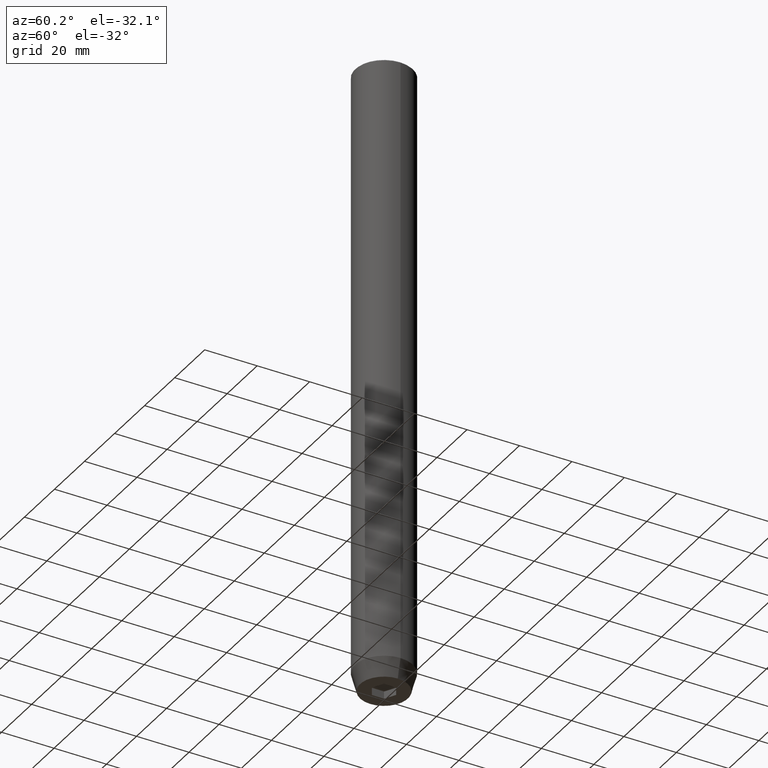
[diagram: clean part render]
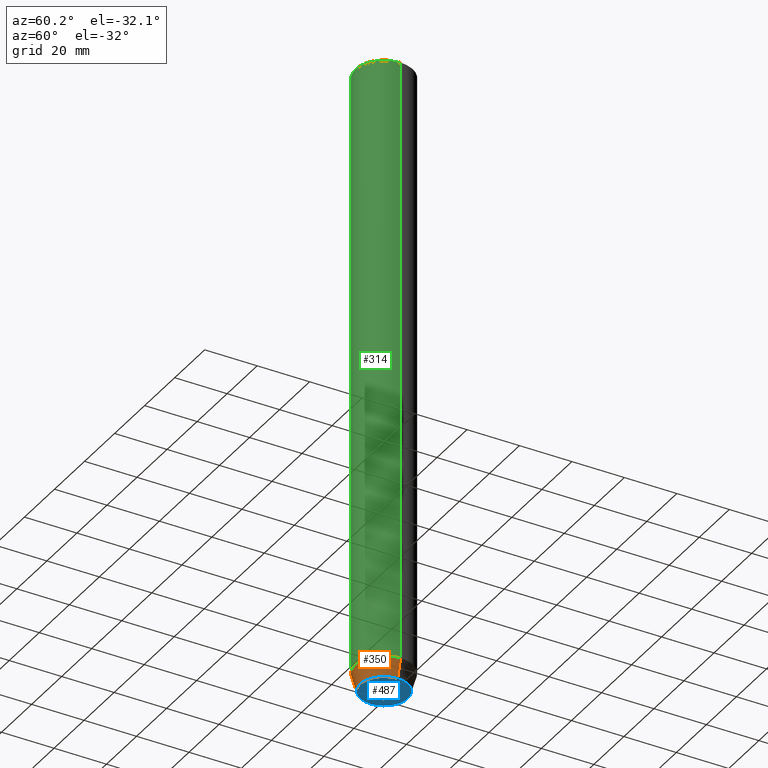
[diagram: same view with three faces highlighted in distinct colors, each labeled with its STEP entity id]
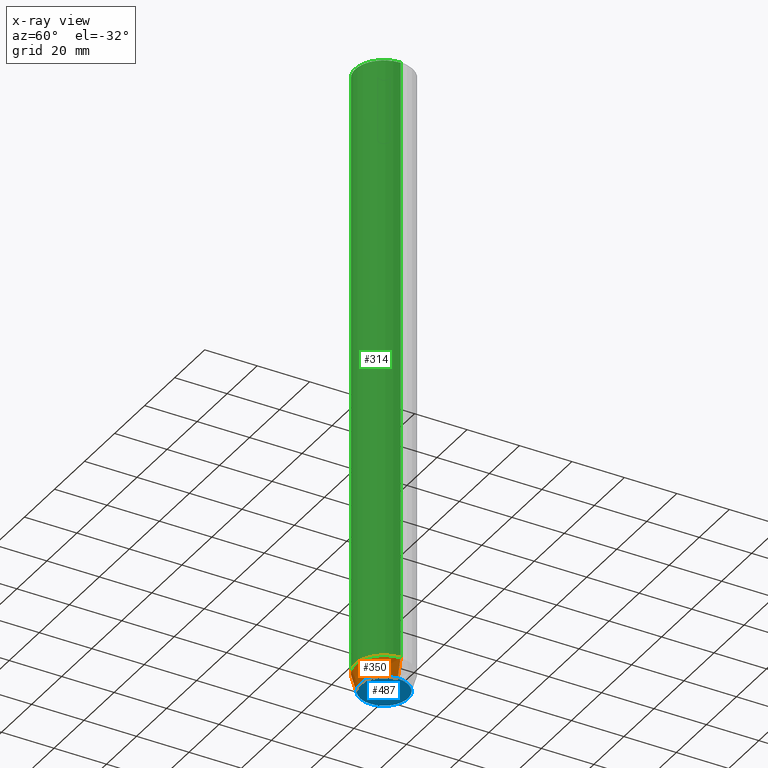
[diagram: x-ray of the same camera — body ghosted, the three highlighted faces saturated]
A machine part, auxiliary view with three faces highlighted in distinct colors.
The next image is the same camera in x-ray (body ghosted, the three faces saturated) — at least one of them is partly hidden behind the body in this view.
Their STEP definitions:

[orange] entity #350 — the highlighted conical surface has half-angle 15 deg.
#2 = CARTESIAN_POINT ( 'NONE',  ( 0.000000000000000000, 0.000000000000000000, -240.0000000000000000 ) ) ;
#8 = EDGE_CURVE ( 'NONE', #197, #468, #38, .T. ) ;
#11 = AXIS2_PLACEMENT_3D ( 'NONE', #2, #362, #126 ) ;
#30 = DIRECTION ( 'NONE',  ( 1.000000000000000000, 0.000000000000000000, 0.000000000000000000 ) ) ;
#38 = CIRCLE ( 'NONE', #11, 9.124355652982133691 ) ;
#45 = LINE ( 'NONE', #460, #473 ) ;
#68 = CARTESIAN_POINT ( 'NONE',  ( 0.000000000000000000, 0.000000000000000000, -232.9999999999999716 ) ) ;
#79 = AXIS2_PLACEMENT_3D ( 'NONE', #68, #351, #30 ) ;
#112 = DIRECTION ( 'NONE',  ( -0.000000000000000000, -0.000000000000000000, 1.000000000000000000 ) ) ;
#126 = DIRECTION ( 'NONE',  ( 1.000000000000000000, 0.000000000000000000, 0.000000000000000000 ) ) ;
#132 = ORIENTED_EDGE ( 'NONE', *, *, #357, .F. ) ;
#134 = DIRECTION ( 'NONE',  ( 0.2588190451025213501, 0.000000000000000000, 0.9659258262890680902 ) ) ;
#142 = LINE ( 'NONE', #147, #305 ) ;
#147 = CARTESIAN_POINT ( 'NONE',  ( -11.00000000000000000, 1.347111479062088405E-15, -232.9999999999999716 ) ) ;
#160 = CONICAL_SURFACE ( 'NONE', #467, 11.00000000000000000, 0.2617993877991500740 ) ;
#162 = EDGE_CURVE ( 'NONE', #197, #248, #142, .T. ) ;
#197 = VERTEX_POINT ( 'NONE', #561 ) ;
#227 = EDGE_LOOP ( 'NONE', ( #525, #569, #290, #132 ) ) ;
#248 = VERTEX_POINT ( 'NONE', #401 ) ;
#276 = CARTESIAN_POINT ( 'NONE',  ( 9.124355652982133691, 0.000000000000000000, -240.0000000000000000 ) ) ;
#290 = ORIENTED_EDGE ( 'NONE', *, *, #451, .T. ) ;
#295 = CIRCLE ( 'NONE', #79, 11.00000000000000000 ) ;
#302 = DIRECTION ( 'NONE',  ( 1.000000000000000000, 0.000000000000000000, 0.000000000000000000 ) ) ;
#305 = VECTOR ( 'NONE', #378, 1000.000000000000000 ) ;
#348 = CARTESIAN_POINT ( 'NONE',  ( 0.000000000000000000, 0.000000000000000000, -232.9999999999999716 ) ) ;
#350 = ADVANCED_FACE ( 'NONE', ( #395 ), #160, .T. ) ;
#351 = DIRECTION ( 'NONE',  ( -0.000000000000000000, -0.000000000000000000, 1.000000000000000000 ) ) ;
#357 = EDGE_CURVE ( 'NONE', #248, #571, #295, .T. ) ;
#362 = DIRECTION ( 'NONE',  ( -0.000000000000000000, -0.000000000000000000, 1.000000000000000000 ) ) ;
#378 = DIRECTION ( 'NONE',  ( -0.2588190451025213501, 3.169619151431772337E-17, 0.9659258262890680902 ) ) ;
#395 = FACE_OUTER_BOUND ( 'NONE', #227, .T. ) ;
#401 = CARTESIAN_POINT ( 'NONE',  ( -11.00000000000000000, 1.347111479062088405E-15, -232.9999999999999716 ) ) ;
#451 = EDGE_CURVE ( 'NONE', #468, #571, #45, .T. ) ;
#460 = CARTESIAN_POINT ( 'NONE',  ( 11.00000000000000000, 0.000000000000000000, -232.9999999999999716 ) ) ;
#467 = AXIS2_PLACEMENT_3D ( 'NONE', #348, #112, #302 ) ;
#468 = VERTEX_POINT ( 'NONE', #276 ) ;
#473 = VECTOR ( 'NONE', #134, 1000.000000000000000 ) ;
#525 = ORIENTED_EDGE ( 'NONE', *, *, #162, .F. ) ;
#542 = CARTESIAN_POINT ( 'NONE',  ( 11.00000000000000000, 0.000000000000000000, -232.9999999999999716 ) ) ;
#561 = CARTESIAN_POINT ( 'NONE',  ( -9.124355652982133691, 1.232261386766375507E-15, -240.0000000000000000 ) ) ;
#569 = ORIENTED_EDGE ( 'NONE', *, *, #8, .T. ) ;
#571 = VERTEX_POINT ( 'NONE', #542 ) ;

[blue] entity #487 — the highlighted planar face has unit normal (0, 0, -1).
#1 = FACE_OUTER_BOUND ( 'NONE', #280, .T. ) ;
#2 = CARTESIAN_POINT ( 'NONE',  ( 0.000000000000000000, 0.000000000000000000, -240.0000000000000000 ) ) ;
#4 = AXIS2_PLACEMENT_3D ( 'NONE', #414, #127, #131 ) ;
#8 = EDGE_CURVE ( 'NONE', #197, #468, #38, .T. ) ;
#11 = AXIS2_PLACEMENT_3D ( 'NONE', #2, #362, #126 ) ;
#14 = VERTEX_POINT ( 'NONE', #250 ) ;
#17 = LINE ( 'NONE', #479, #118 ) ;
#25 = ORIENTED_EDGE ( 'NONE', *, *, #461, .F. ) ;
#28 = VECTOR ( 'NONE', #572, 1000.000000000000000 ) ;
#38 = CIRCLE ( 'NONE', #11, 9.124355652982133691 ) ;
#63 = VERTEX_POINT ( 'NONE', #336 ) ;
#64 = LINE ( 'NONE', #437, #28 ) ;
#83 = CARTESIAN_POINT ( 'NONE',  ( -4.000000000000000000, 2.309401076758503368, -240.0000000000000000 ) ) ;
#92 = EDGE_CURVE ( 'NONE', #14, #430, #64, .T. ) ;
#94 = EDGE_CURVE ( 'NONE', #106, #63, #309, .T. ) ;
#101 = LINE ( 'NONE', #291, #279 ) ;
#102 = ORIENTED_EDGE ( 'NONE', *, *, #92, .F. ) ;
#105 = CARTESIAN_POINT ( 'NONE',  ( 4.336808689942017736E-16, -4.618802153517006737, -240.0000000000000000 ) ) ;
#106 = VERTEX_POINT ( 'NONE', #448 ) ;
#118 = VECTOR ( 'NONE', #193, 1000.000000000000000 ) ;
#124 = ORIENTED_EDGE ( 'NONE', *, *, #441, .F. ) ;
#126 = DIRECTION ( 'NONE',  ( 1.000000000000000000, 0.000000000000000000, 0.000000000000000000 ) ) ;
#127 = DIRECTION ( 'NONE',  ( 0.000000000000000000, 0.000000000000000000, -1.000000000000000000 ) ) ;
#131 = DIRECTION ( 'NONE',  ( -1.000000000000000000, 0.000000000000000000, -0.000000000000000000 ) ) ;
#137 = CIRCLE ( 'NONE', #322, 9.124355652982133691 ) ;
#145 = VECTOR ( 'NONE', #406, 999.9999999999998863 ) ;
#149 = EDGE_CURVE ( 'NONE', #535, #287, #101, .T. ) ;
#175 = PLANE ( 'NONE',  #4 ) ;
#182 = EDGE_CURVE ( 'NONE', #63, #535, #17, .T. ) ;
#193 = DIRECTION ( 'NONE',  ( 0.000000000000000000, -1.000000000000000000, 0.000000000000000000 ) ) ;
#197 = VERTEX_POINT ( 'NONE', #561 ) ;
#211 = CARTESIAN_POINT ( 'NONE',  ( 0.000000000000000000, 0.000000000000000000, -240.0000000000000000 ) ) ;
#249 = CARTESIAN_POINT ( 'NONE',  ( 4.000000000000000000, -2.309401076758502480, -240.0000000000000000 ) ) ;
#250 = CARTESIAN_POINT ( 'NONE',  ( -4.000000000000000000, -2.309401076758503368, -240.0000000000000000 ) ) ;
#269 = EDGE_LOOP ( 'NONE', ( #25, #102, #124, #486, #500, #475 ) ) ;
#276 = CARTESIAN_POINT ( 'NONE',  ( 9.124355652982133691, 0.000000000000000000, -240.0000000000000000 ) ) ;
#279 = VECTOR ( 'NONE', #289, 1000.000000000000114 ) ;
#280 = EDGE_LOOP ( 'NONE', ( #311, #585 ) ) ;
#281 = VECTOR ( 'NONE', #452, 1000.000000000000114 ) ;
#287 = VERTEX_POINT ( 'NONE', #105 ) ;
#289 = DIRECTION ( 'NONE',  ( -0.8660254037844384856, -0.5000000000000002220, 0.000000000000000000 ) ) ;
#291 = CARTESIAN_POINT ( 'NONE',  ( 2.000000000000000888, -3.464101615137754386, -240.0000000000000000 ) ) ;
#309 = LINE ( 'NONE', #346, #422 ) ;
#311 = ORIENTED_EDGE ( 'NONE', *, *, #318, .F. ) ;
#318 = EDGE_CURVE ( 'NONE', #468, #197, #137, .T. ) ;
#322 = AXIS2_PLACEMENT_3D ( 'NONE', #211, #392, #534 ) ;
#336 = CARTESIAN_POINT ( 'NONE',  ( 4.000000000000000000, 2.309401076758503368, -240.0000000000000000 ) ) ;
#346 = CARTESIAN_POINT ( 'NONE',  ( 2.000000000000000444, 3.464101615137754386, -240.0000000000000000 ) ) ;
#362 = DIRECTION ( 'NONE',  ( -0.000000000000000000, -0.000000000000000000, 1.000000000000000000 ) ) ;
#370 = FACE_BOUND ( 'NONE', #269, .T. ) ;
#392 = DIRECTION ( 'NONE',  ( -0.000000000000000000, -0.000000000000000000, 1.000000000000000000 ) ) ;
#406 = DIRECTION ( 'NONE',  ( 0.8660254037844387076, 0.5000000000000001110, 0.000000000000000000 ) ) ;
#411 = CARTESIAN_POINT ( 'NONE',  ( -2.000000000000000000, 3.464101615137754830, -240.0000000000000000 ) ) ;
#414 = CARTESIAN_POINT ( 'NONE',  ( 0.000000000000000000, 9.124355652982133691, -240.0000000000000000 ) ) ;
#422 = VECTOR ( 'NONE', #539, 1000.000000000000000 ) ;
#430 = VERTEX_POINT ( 'NONE', #83 ) ;
#437 = CARTESIAN_POINT ( 'NONE',  ( -4.000000000000000000, 0.000000000000000000, -240.0000000000000000 ) ) ;
#441 = EDGE_CURVE ( 'NONE', #287, #14, #549, .T. ) ;
#448 = CARTESIAN_POINT ( 'NONE',  ( 2.168404344971008868E-16, 4.618802153517006737, -240.0000000000000000 ) ) ;
#452 = DIRECTION ( 'NONE',  ( -0.8660254037844384856, 0.5000000000000002220, 0.000000000000000000 ) ) ;
#461 = EDGE_CURVE ( 'NONE', #430, #106, #463, .T. ) ;
#463 = LINE ( 'NONE', #411, #145 ) ;
#468 = VERTEX_POINT ( 'NONE', #276 ) ;
#475 = ORIENTED_EDGE ( 'NONE', *, *, #94, .F. ) ;
#479 = CARTESIAN_POINT ( 'NONE',  ( 4.000000000000000000, 0.000000000000000000, -240.0000000000000000 ) ) ;
#486 = ORIENTED_EDGE ( 'NONE', *, *, #149, .F. ) ;
#487 = ADVANCED_FACE ( 'NONE', ( #370, #1 ), #175, .T. ) ;
#500 = ORIENTED_EDGE ( 'NONE', *, *, #182, .F. ) ;
#534 = DIRECTION ( 'NONE',  ( 1.000000000000000000, 0.000000000000000000, 0.000000000000000000 ) ) ;
#535 = VERTEX_POINT ( 'NONE', #249 ) ;
#539 = DIRECTION ( 'NONE',  ( 0.8660254037844385966, -0.5000000000000001110, 0.000000000000000000 ) ) ;
#549 = LINE ( 'NONE', #555, #281 ) ;
#555 = CARTESIAN_POINT ( 'NONE',  ( -2.000000000000000888, -3.464101615137754386, -240.0000000000000000 ) ) ;
#561 = CARTESIAN_POINT ( 'NONE',  ( -9.124355652982133691, 1.232261386766375507E-15, -240.0000000000000000 ) ) ;
#572 = DIRECTION ( 'NONE',  ( 0.000000000000000000, 1.000000000000000000, 0.000000000000000000 ) ) ;
#585 = ORIENTED_EDGE ( 'NONE', *, *, #8, .F. ) ;

[green] entity #314 — the highlighted cylindrical surface (edge-blend (fillet) strip) has radius 11 mm, axis along (-0, -0, 1).
#30 = DIRECTION ( 'NONE',  ( 1.000000000000000000, 0.000000000000000000, 0.000000000000000000 ) ) ;
#46 = ORIENTED_EDGE ( 'NONE', *, *, #360, .T. ) ;
#52 = EDGE_LOOP ( 'NONE', ( #446, #396, #46, #254 ) ) ;
#62 = DIRECTION ( 'NONE',  ( -0.000000000000000000, -0.000000000000000000, 1.000000000000000000 ) ) ;
#68 = CARTESIAN_POINT ( 'NONE',  ( 0.000000000000000000, 0.000000000000000000, -232.9999999999999716 ) ) ;
#74 = LINE ( 'NONE', #215, #129 ) ;
#79 = AXIS2_PLACEMENT_3D ( 'NONE', #68, #351, #30 ) ;
#115 = CARTESIAN_POINT ( 'NONE',  ( 0.000000000000000000, 0.000000000000000000, -0.5000000000000004441 ) ) ;
#129 = VECTOR ( 'NONE', #499, 1000.000000000000000 ) ;
#153 = CARTESIAN_POINT ( 'NONE',  ( -11.00000000000000000, 1.347111479062088405E-15, -0.5000000000000004441 ) ) ;
#177 = VERTEX_POINT ( 'NONE', #379 ) ;
#215 = CARTESIAN_POINT ( 'NONE',  ( -11.00000000000000000, 1.347111479062088405E-15, 0.000000000000000000 ) ) ;
#219 = LINE ( 'NONE', #397, #498 ) ;
#225 = AXIS2_PLACEMENT_3D ( 'NONE', #115, #573, #493 ) ;
#248 = VERTEX_POINT ( 'NONE', #401 ) ;
#253 = DIRECTION ( 'NONE',  ( 1.000000000000000000, 0.000000000000000000, 0.000000000000000000 ) ) ;
#254 = ORIENTED_EDGE ( 'NONE', *, *, #283, .T. ) ;
#264 = EDGE_CURVE ( 'NONE', #248, #547, #74, .T. ) ;
#283 = EDGE_CURVE ( 'NONE', #177, #547, #582, .T. ) ;
#295 = CIRCLE ( 'NONE', #79, 11.00000000000000000 ) ;
#314 = ADVANCED_FACE ( 'NONE', ( #485 ), #439, .T. ) ;
#351 = DIRECTION ( 'NONE',  ( -0.000000000000000000, -0.000000000000000000, 1.000000000000000000 ) ) ;
#357 = EDGE_CURVE ( 'NONE', #248, #571, #295, .T. ) ;
#360 = EDGE_CURVE ( 'NONE', #571, #177, #219, .T. ) ;
#379 = CARTESIAN_POINT ( 'NONE',  ( 11.00000000000000000, 0.000000000000000000, -0.5000000000000004441 ) ) ;
#396 = ORIENTED_EDGE ( 'NONE', *, *, #357, .T. ) ;
#397 = CARTESIAN_POINT ( 'NONE',  ( 11.00000000000000000, 0.000000000000000000, 0.000000000000000000 ) ) ;
#401 = CARTESIAN_POINT ( 'NONE',  ( -11.00000000000000000, 1.347111479062088405E-15, -232.9999999999999716 ) ) ;
#439 = CYLINDRICAL_SURFACE ( 'NONE', #508, 11.00000000000000000 ) ;
#445 = CARTESIAN_POINT ( 'NONE',  ( 0.000000000000000000, 0.000000000000000000, 0.000000000000000000 ) ) ;
#446 = ORIENTED_EDGE ( 'NONE', *, *, #264, .F. ) ;
#485 = FACE_OUTER_BOUND ( 'NONE', #52, .T. ) ;
#493 = DIRECTION ( 'NONE',  ( 1.000000000000000000, 0.000000000000000000, 0.000000000000000000 ) ) ;
#498 = VECTOR ( 'NONE', #575, 1000.000000000000000 ) ;
#499 = DIRECTION ( 'NONE',  ( -0.000000000000000000, -0.000000000000000000, 1.000000000000000000 ) ) ;
#508 = AXIS2_PLACEMENT_3D ( 'NONE', #445, #62, #253 ) ;
#542 = CARTESIAN_POINT ( 'NONE',  ( 11.00000000000000000, 0.000000000000000000, -232.9999999999999716 ) ) ;
#547 = VERTEX_POINT ( 'NONE', #153 ) ;
#571 = VERTEX_POINT ( 'NONE', #542 ) ;
#573 = DIRECTION ( 'NONE',  ( 0.000000000000000000, 0.000000000000000000, -1.000000000000000000 ) ) ;
#575 = DIRECTION ( 'NONE',  ( -0.000000000000000000, -0.000000000000000000, 1.000000000000000000 ) ) ;
#582 = CIRCLE ( 'NONE', #225, 11.00000000000000000 ) ;